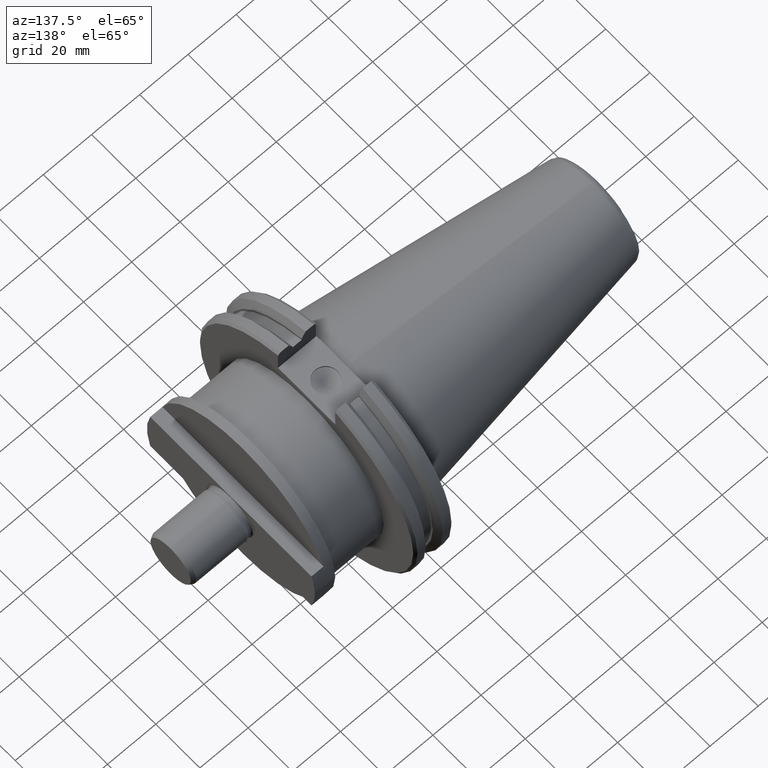
[diagram: clean part render]
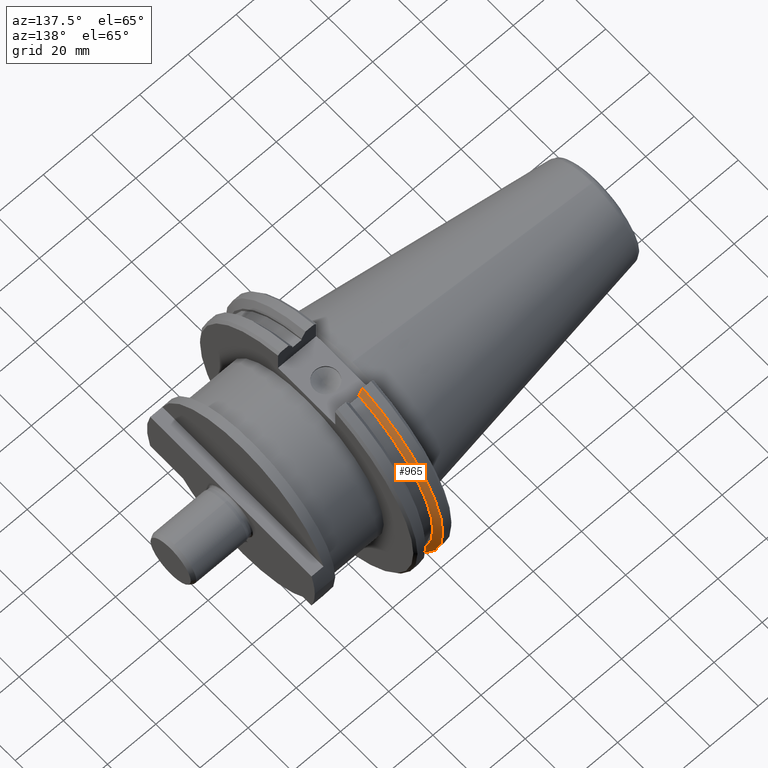
[diagram: same view with one face highlighted and labeled with its STEP entity id]
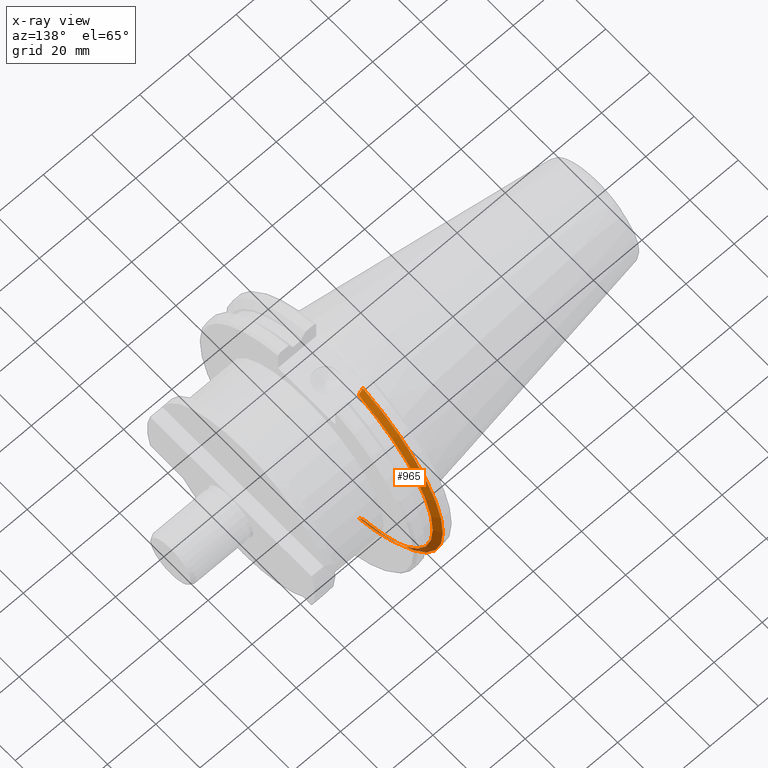
[diagram: x-ray of the same camera — body ghosted, the highlighted face saturated]
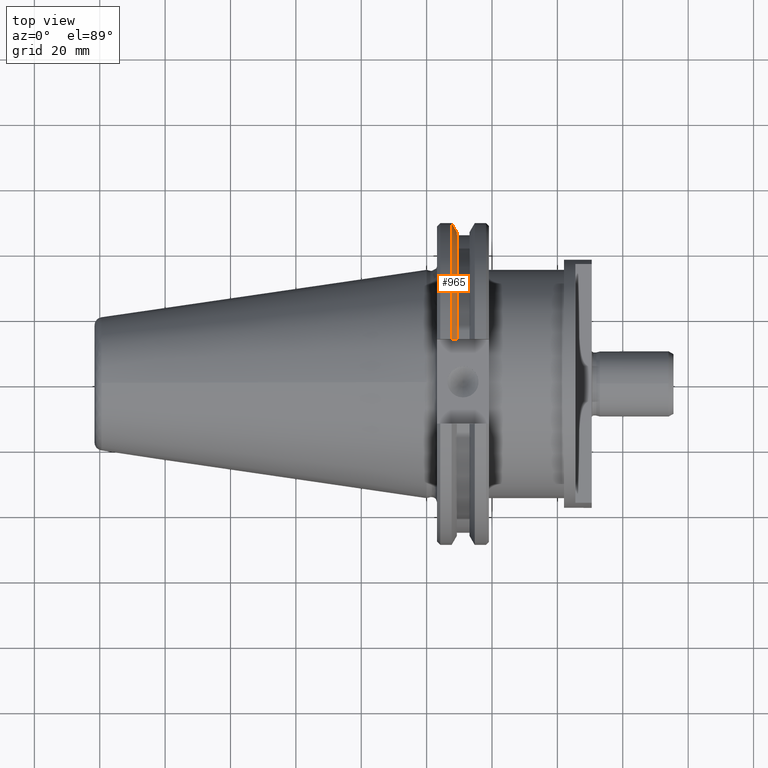
[diagram: same view with one face highlighted and labeled with its STEP entity id]
A machine part, auxiliary view. The second image highlights one B-rep face of the part: STEP entity #965.
The next image is the same camera in x-ray: the body ghosted, the highlighted face saturated — about 6% of this face is hidden behind the body in this view.
A second angle (top view) of the same face is appended — the face is thin or edge-on in the first view.
In plain terms, the highlighted conical surface has half-angle 60 deg.
Its self-contained STEP definition (entity closure, byte-faithful):
#51=CONICAL_SURFACE('',#1094,47.81935371176,1.0471975511966);
#93=FACE_OUTER_BOUND('',#156,.T.);
#156=EDGE_LOOP('',(#811,#812,#813,#814));
#231=CIRCLE('',#1093,46.42620742351);
#232=CIRCLE('',#1095,49.2125);
#380=(
BOUNDED_CURVE()
B_SPLINE_CURVE(2,(#1661,#1662,#1663),.UNSPECIFIED.,.F.,.F.)
B_SPLINE_CURVE_WITH_KNOTS((3,3),(2.60401638925369,2.88858881599894),
 .UNSPECIFIED.)
CURVE()
GEOMETRIC_REPRESENTATION_ITEM()
RATIONAL_B_SPLINE_CURVE((1.03389068892075,1.03145588723293,1.02808418266418))
REPRESENTATION_ITEM('')
);
#382=(
BOUNDED_CURVE()
B_SPLINE_CURVE(2,(#1688,#1689,#1690),.UNSPECIFIED.,.F.,.F.)
B_SPLINE_CURVE_WITH_KNOTS((3,3),(0.84036338962662,1.12493581634954),
 .UNSPECIFIED.)
CURVE()
GEOMETRIC_REPRESENTATION_ITEM()
RATIONAL_B_SPLINE_CURVE((1.02808418266464,1.03145588723304,1.03389068892066))
REPRESENTATION_ITEM('')
);
#443=VERTEX_POINT('',#1658);
#444=VERTEX_POINT('',#1660);
#453=VERTEX_POINT('',#1685);
#454=VERTEX_POINT('',#1687);
#563=EDGE_CURVE('',#444,#443,#380,.T.);
#574=EDGE_CURVE('',#454,#453,#382,.T.);
#582=EDGE_CURVE('',#444,#453,#231,.T.);
#583=EDGE_CURVE('',#443,#454,#232,.T.);
#811=ORIENTED_EDGE('',*,*,#563,.T.);
#812=ORIENTED_EDGE('',*,*,#583,.T.);
#813=ORIENTED_EDGE('',*,*,#574,.T.);
#814=ORIENTED_EDGE('',*,*,#582,.F.);
#965=ADVANCED_FACE('',(#93),#51,.T.);
#1093=AXIS2_PLACEMENT_3D('',#1705,#1356,#1357);
#1094=AXIS2_PLACEMENT_3D('',#1706,#1358,#1359);
#1095=AXIS2_PLACEMENT_3D('',#1707,#1360,#1361);
#1356=DIRECTION('center_axis',(1.,0.,0.));
#1357=DIRECTION('ref_axis',(0.,0.279023437814492,-0.960284291837673));
#1358=DIRECTION('center_axis',(-1.,0.,0.));
#1359=DIRECTION('ref_axis',(0.,1.,0.));
#1360=DIRECTION('center_axis',(1.,0.,0.));
#1361=DIRECTION('ref_axis',(0.,0.2632258064516,-0.964734250878399));
#1658=CARTESIAN_POINT('',(7.649833230926,12.954,-47.47698432135));
#1660=CARTESIAN_POINT('',(9.258500000001,12.954,-44.5823577184));
#1661=CARTESIAN_POINT('Ctrl Pts',(9.25850000000722,12.954,-44.5823577183886));
#1662=CARTESIAN_POINT('Ctrl Pts',(8.47945731117877,12.954,-45.9875056831999));
#1663=CARTESIAN_POINT('Ctrl Pts',(7.64983323079735,12.954,-47.476984321586));
#1685=CARTESIAN_POINT('',(9.258500000001,12.954,44.5823577184));
#1687=CARTESIAN_POINT('',(7.649833230926,12.954,47.47698432135));
#1688=CARTESIAN_POINT('Ctrl Pts',(7.64983323092814,12.954,47.4769843213512));
#1689=CARTESIAN_POINT('Ctrl Pts',(8.47945731124011,12.954,45.9875056830893));
#1690=CARTESIAN_POINT('Ctrl Pts',(9.25850000000722,12.954,44.5823577183886));
#1705=CARTESIAN_POINT('Origin',(9.258500000001,0.,0.));
#1706=CARTESIAN_POINT('Origin',(8.454166615463,0.,0.));
#1707=CARTESIAN_POINT('Origin',(7.649833230925,0.,0.));